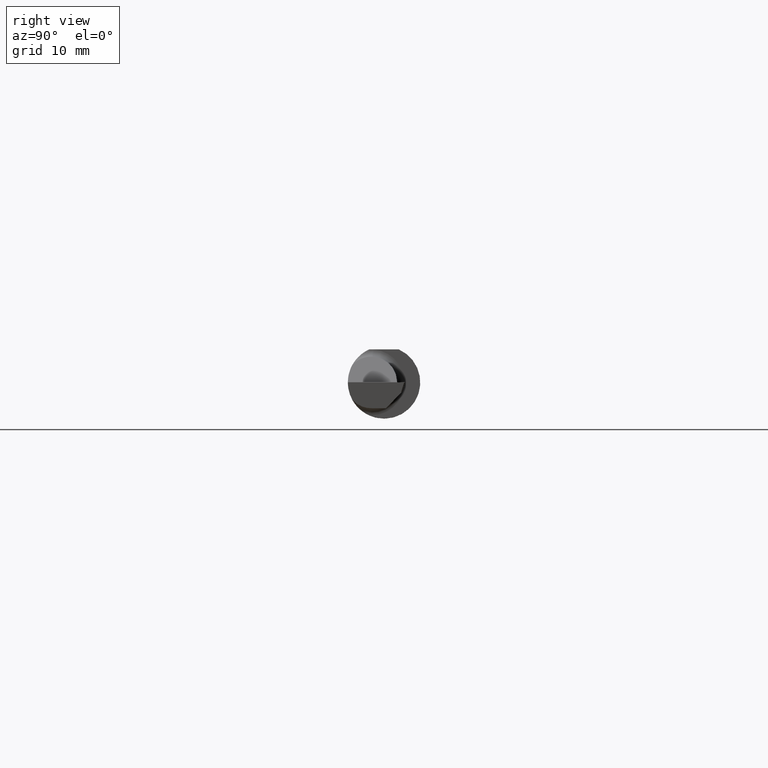
[diagram: clean part render]
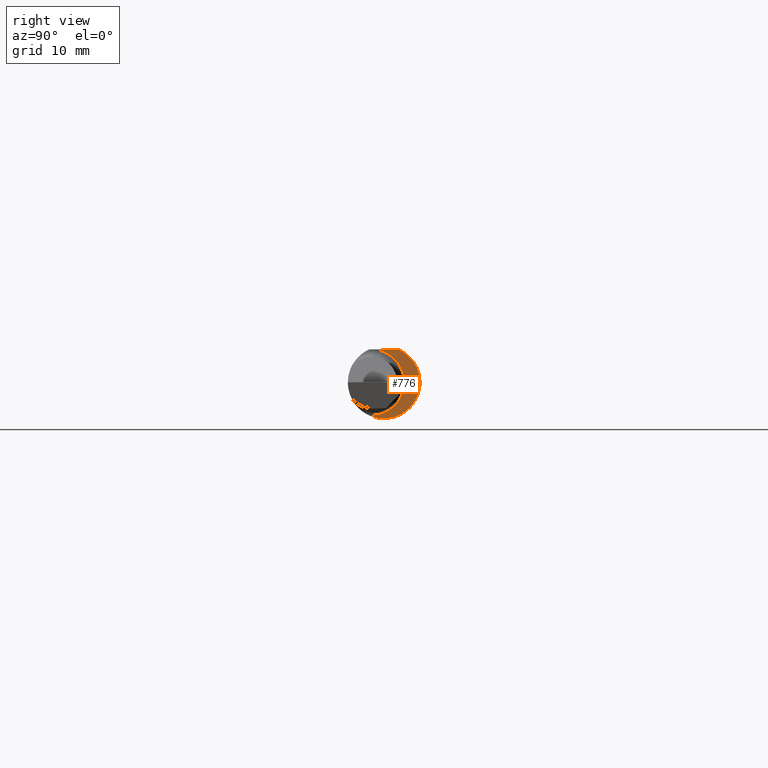
[diagram: same view with one face highlighted and labeled with its STEP entity id]
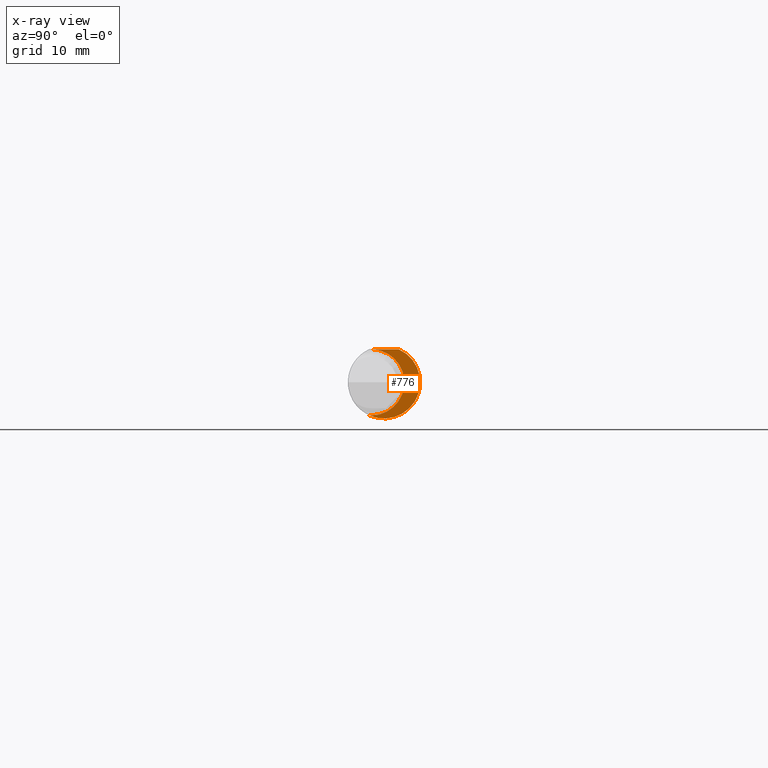
[diagram: x-ray of the same camera — body ghosted, the highlighted face saturated]
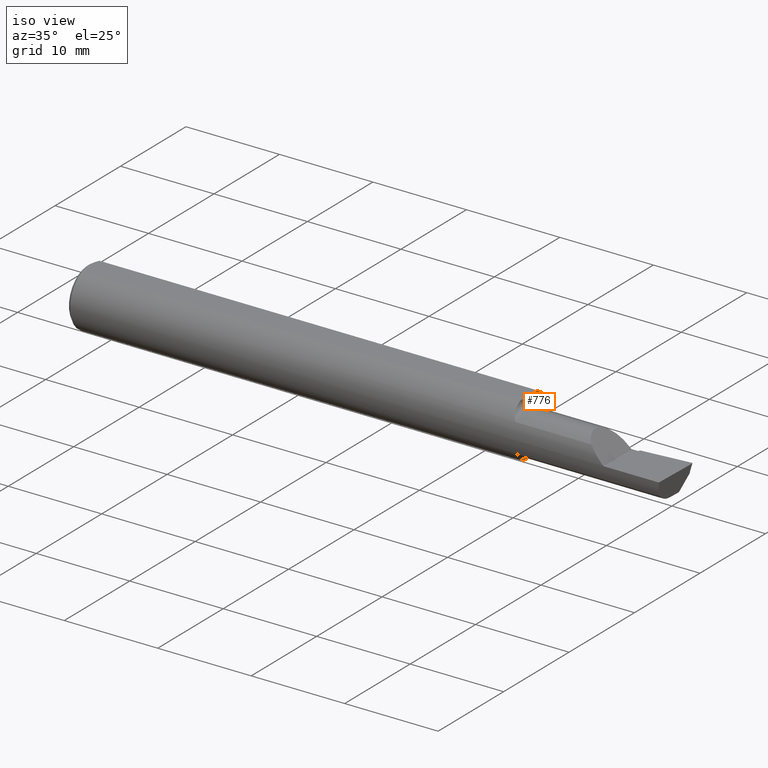
[diagram: same view with one face highlighted and labeled with its STEP entity id]
A machine part, right view. The second image highlights one B-rep face of the part: STEP entity #776.
The next image is the same camera in x-ray: the body ghosted, the highlighted face saturated — about 0% of this face is hidden behind the body in this view.
A second angle (iso view) of the same face is appended — the face is thin or edge-on in the first view.
In plain terms, the highlighted planar face has unit normal (1, 0, 0).
Its self-contained STEP definition (entity closure, byte-faithful):
#103 = EDGE_LOOP ( 'NONE', ( #201, #132, #289, #1233 ) ) ;
#132 = ORIENTED_EDGE ( 'NONE', *, *, #658, .T. ) ;
#134 = PLANE ( 'NONE',  #445 ) ;
#140 = CARTESIAN_POINT ( 'NONE',  ( 1.860000000000000098, 0.1951499999999999624, 0.000000000000000000 ) ) ;
#176 = VERTEX_POINT ( 'NONE', #480 ) ;
#188 = DIRECTION ( 'NONE',  ( 0.000000000000000000, 0.000000000000000000, -1.000000000000000000 ) ) ;
#201 = ORIENTED_EDGE ( 'NONE', *, *, #497, .T. ) ;
#204 = DIRECTION ( 'NONE',  ( -1.000000000000000000, -0.000000000000000000, -0.000000000000000000 ) ) ;
#216 = CARTESIAN_POINT ( 'NONE',  ( 1.860000000000000098, 0.000000000000000000, 0.000000000000000000 ) ) ;
#289 = ORIENTED_EDGE ( 'NONE', *, *, #1116, .T. ) ;
#312 = EDGE_CURVE ( 'NONE', #876, #813, #613, .T. ) ;
#363 = AXIS2_PLACEMENT_3D ( 'NONE', #216, #617, #1199 ) ;
#365 = CARTESIAN_POINT ( 'NONE',  ( 1.860000000000000098, -0.03800384741902852054, 0.1138500000000000068 ) ) ;
#445 = AXIS2_PLACEMENT_3D ( 'NONE', #140, #538, #756 ) ;
#480 = CARTESIAN_POINT ( 'NONE',  ( 1.860000000000000098, -0.04385000000000000009, -0.1140000000000000041 ) ) ;
#483 = AXIS2_PLACEMENT_3D ( 'NONE', #1164, #1307, #688 ) ;
#497 = EDGE_CURVE ( 'NONE', #813, #946, #736, .T. ) ;
#538 = DIRECTION ( 'NONE',  ( 1.000000000000000000, 0.000000000000000000, 0.000000000000000000 ) ) ;
#540 = DIRECTION ( 'NONE',  ( 0.000000000000000000, -1.000000000000000000, 0.000000000000000000 ) ) ;
#569 = CIRCLE ( 'NONE', #1152, 0.1140000000000000041 ) ;
#613 = CIRCLE ( 'NONE', #363, 0.1248500000000000026 ) ;
#617 = DIRECTION ( 'NONE',  ( 1.000000000000000000, 0.000000000000000000, 0.000000000000000000 ) ) ;
#658 = EDGE_CURVE ( 'NONE', #946, #176, #569, .T. ) ;
#688 = DIRECTION ( 'NONE',  ( 0.000000000000000000, 0.000000000000000000, -1.000000000000000000 ) ) ;
#736 = LINE ( 'NONE', #1249, #963 ) ;
#756 = DIRECTION ( 'NONE',  ( 0.000000000000000000, 0.000000000000000000, -1.000000000000000000 ) ) ;
#776 = ADVANCED_FACE ( 'NONE', ( #1160 ), #134, .T. ) ;
#813 = VERTEX_POINT ( 'NONE', #948 ) ;
#876 = VERTEX_POINT ( 'NONE', #989 ) ;
#946 = VERTEX_POINT ( 'NONE', #365 ) ;
#948 = CARTESIAN_POINT ( 'NONE',  ( 1.860000000000000098, 0.05124158467494929065, 0.1138500000000000068 ) ) ;
#963 = VECTOR ( 'NONE', #540, 39.37007874015748143 ) ;
#989 = CARTESIAN_POINT ( 'NONE',  ( 1.860000000000000098, -0.05147485746864310929, -0.1137447209701746148 ) ) ;
#1116 = EDGE_CURVE ( 'NONE', #176, #876, #1267, .T. ) ;
#1152 = AXIS2_PLACEMENT_3D ( 'NONE', #1231, #204, #188 ) ;
#1160 = FACE_OUTER_BOUND ( 'NONE', #103, .T. ) ;
#1164 = CARTESIAN_POINT ( 'NONE',  ( 1.860000000000000098, -0.04385000000000000009, 0.000000000000000000 ) ) ;
#1199 = DIRECTION ( 'NONE',  ( 0.000000000000000000, 0.000000000000000000, -1.000000000000000000 ) ) ;
#1231 = CARTESIAN_POINT ( 'NONE',  ( 1.860000000000000098, -0.04385000000000000009, 0.000000000000000000 ) ) ;
#1233 = ORIENTED_EDGE ( 'NONE', *, *, #312, .T. ) ;
#1249 = CARTESIAN_POINT ( 'NONE',  ( 1.860000000000000098, 0.1000000000000000056, 0.1138500000000000068 ) ) ;
#1267 = CIRCLE ( 'NONE', #483, 0.1140000000000000041 ) ;
#1307 = DIRECTION ( 'NONE',  ( -1.000000000000000000, -0.000000000000000000, -0.000000000000000000 ) ) ;